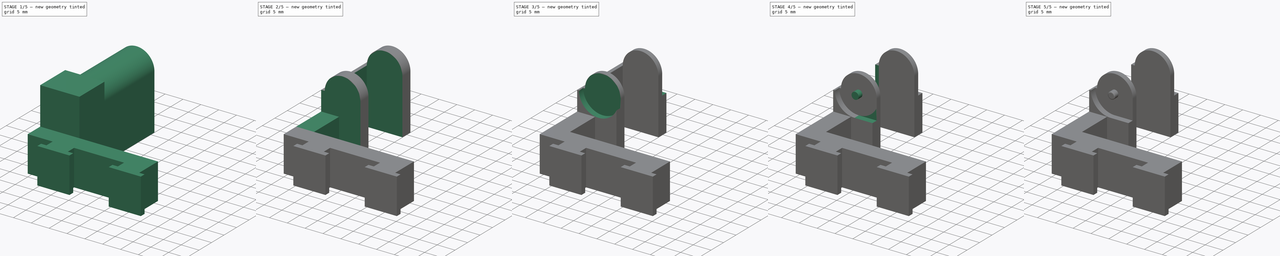
[diagram: build sequence overview — one tinted view per stage of 5, left to right]
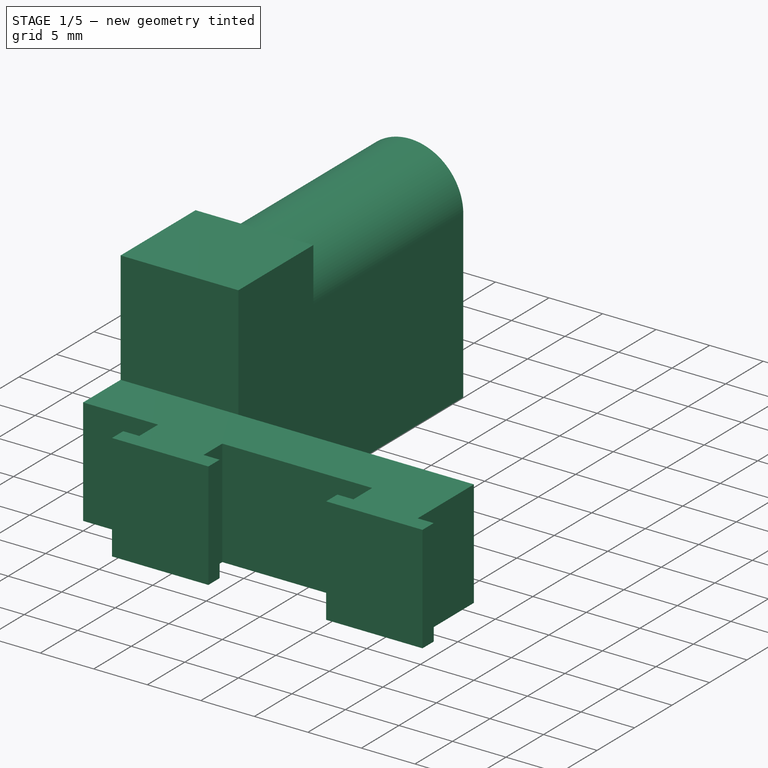
[diagram: stage 1 of 5 — iso view after this stage's code; geometry added in this stage tinted green]
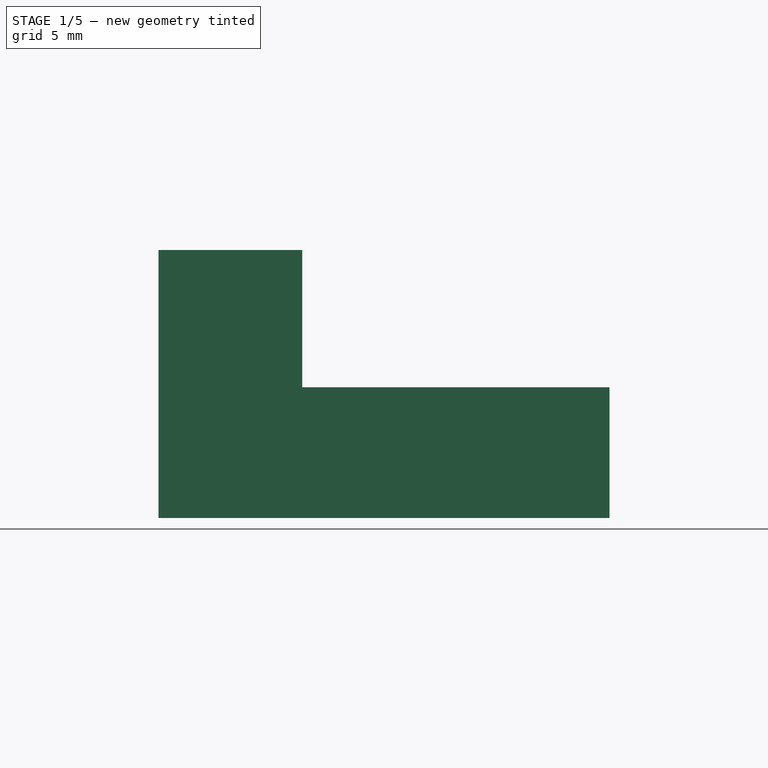
[diagram: stage 1 of 5 — front view after this stage's code; geometry added in this stage tinted green]
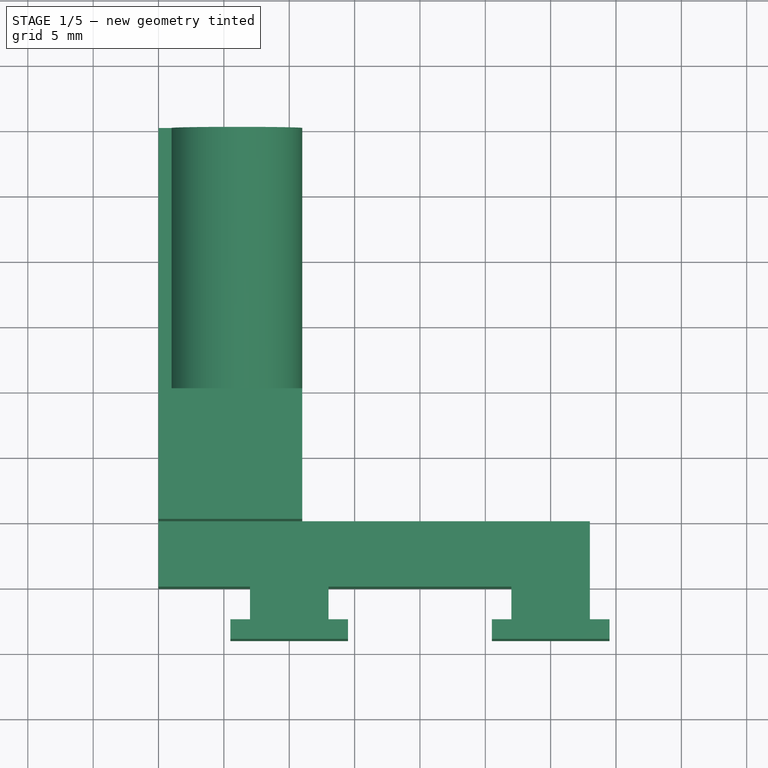
[diagram: stage 1 of 5 — top view after this stage's code; geometry added in this stage tinted green]
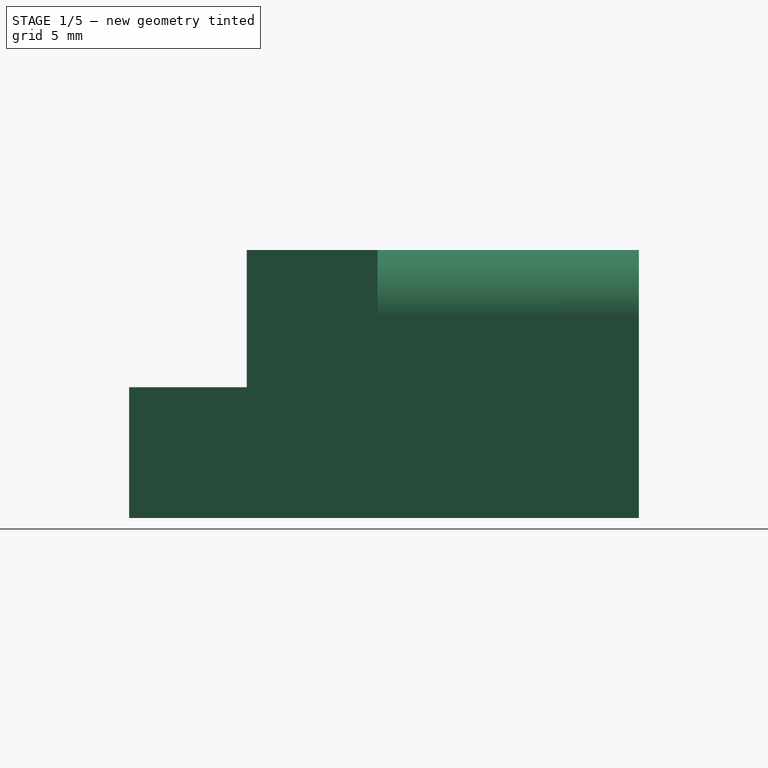
[diagram: stage 1 of 5 — right view after this stage's code; geometry added in this stage tinted green]
FCSTD DOCUMENT  (FreeCAD 0.17R13541 (Git))
Label: CableCareerTableFooter
License: All rights reserved
LicenseURL: http://en.wikipedia.org/wiki/All_rights_reserved
objects: Sketcher::SketchObject×14, PartDesign::Pocket×10, PartDesign::Pad×3, PartDesign::Fillet×2, PartDesign::Body×1
note: 43 computed .brp shape members not serialized (recipe doc carries the construction recipe); baked Part::Feature solids carry a one-line shape summary decoded from their .brp

FEATURE [Sketcher::SketchObject] Sketch
  MapMode = 5
  Support = -> [XY_Plane]
  sketch-geometry (21):
    g0: LineSegment StartX=13 StartY=0 StartZ=0 EndX=13 EndY=-2.5 EndZ=0
    g1: LineSegment StartX=13 StartY=-2.5 StartZ=0 EndX=14.5 EndY=-2.5 EndZ=0
    g2: LineSegment StartX=14.5 StartY=-2.5 StartZ=0 EndX=14.5 EndY=-4 EndZ=0
    g3: LineSegment StartX=14.5 StartY=-4 StartZ=0 EndX=5.5 EndY=-4 EndZ=0
    g4: LineSegment StartX=5.5 StartY=-4 StartZ=0 EndX=5.5 EndY=-2.5 EndZ=0
    g5: LineSegment StartX=5.5 StartY=-2.5 StartZ=0 EndX=7 EndY=-2.5 EndZ=0
    g6: LineSegment StartX=7 StartY=-2.5 StartZ=0 EndX=7 EndY=0 EndZ=0
    g7: LineSegment StartX=7 StartY=0 StartZ=0 EndX=-7 EndY=0 EndZ=0
    g8: LineSegment StartX=-7 StartY=0 StartZ=0 EndX=-7 EndY=-2.5 EndZ=0
    g9: LineSegment StartX=-7 StartY=-2.5 StartZ=0 EndX=-5.5 EndY=-2.5 EndZ=0
    g10: LineSegment StartX=-5.5 StartY=-2.5 StartZ=0 EndX=-5.5 EndY=-4 EndZ=0
    g11: LineSegment StartX=-5.5 StartY=-4 StartZ=0 EndX=-14.5 EndY=-4 EndZ=0
    g12: LineSegment StartX=-14.5 StartY=-4 StartZ=0 EndX=-14.5 EndY=-2.5 EndZ=0
    g13: LineSegment StartX=-14.5 StartY=-2.5 StartZ=0 EndX=-13 EndY=-2.5 EndZ=0
    g14: LineSegment StartX=-13 StartY=-2.5 StartZ=0 EndX=-13 EndY=0 EndZ=0
    g15: LineSegment StartX=-13 StartY=0 StartZ=0 EndX=-20 EndY=0 EndZ=0
    g16: LineSegment StartX=-20 StartY=0 StartZ=0 EndX=-20 EndY=35 EndZ=0
    g17: LineSegment StartX=-20 StartY=35 StartZ=0 EndX=-9 EndY=35 EndZ=0
    g18: LineSegment StartX=-9 StartY=35 StartZ=0 EndX=-9 EndY=5 EndZ=0
    g19: LineSegment StartX=-9 StartY=5 StartZ=0 EndX=13 EndY=5 EndZ=0
    g20: LineSegment StartX=13 StartY=5 StartZ=0 EndX=13 EndY=0 EndZ=0
  constraints (63):
    c: Coincident(g0,g1)
    c: Coincident(g1,g2)
    c: Coincident(g2,g3)
    c: Coincident(g3,g4)
    c: Coincident(g4,g5)
    c: Coincident(g5,g6)
    c: Coincident(g6,g7)
    c: Coincident(g7,g8)
    c: Coincident(g8,g9)
    c: Coincident(g9,g10)
    c: Coincident(g10,g11)
    c: Coincident(g11,g12)
    c: Coincident(g12,g13)
    c: Coincident(g13,g14)
    c: Coincident(g14,g15)
    c: Horizontal(g11)
    c: Horizontal(g13)
    c: Horizontal(g15)
    c: Horizontal(g7)
    c: Horizontal(g9)
    c: Horizontal(g5)
    c: Horizontal(g3)
    c: Horizontal(g1)
    c: Vertical(g12)
    c: Vertical(g14)
    c: Vertical(g8)
    c: Vertical(g10)
    c: Vertical(g4)
    c: Vertical(g6)
    c: Vertical(g0)
    c: Vertical(g2)
    c: DistanceX(g15,g15) = 7
    c: DistanceX(g7,g7) = 14
    c: DistanceX(g14,g7) = 6
    c: DistanceX(g6,g0) = 6
    c: PointOnObject(g15,g-1)
    c: PointOnObject(g7,g-1)
    c: PointOnObject(g0,g-1)
    c: DistanceY(g14,g14) = 2.5
    c: DistanceY(g8,g8) = 2.5
    c: DistanceY(g6,g6) = 2.5
    c: DistanceY(g0,g0) = 2.5
    c: DistanceY(g12,g12) = 1.5
    c: DistanceY(g4,g4) = 1.5
    c: DistanceX(g13,g13) = 1.5
    c: DistanceX(g9,g9) = 1.5
    c: DistanceX(g5,g5) = 1.5
    c: DistanceX(g1,g1) = 1.5
    c: DistanceX(g7,g-1) = 7
    c: Coincident(g16,g17)
    c: Coincident(g17,g18)
    c: Coincident(g18,g19)
    c: Coincident(g19,g20)
    c: Vertical(g16)
    c: Vertical(g18)
    c: Vertical(g20)
    c: Horizontal(g17)
    c: Horizontal(g19)
    c: Coincident(g16,g15)
    c: DistanceY(g16,g16) = 35
    c: DistanceY(g20,g20) = 5
    c: DistanceX(g17,g17) = 11
    c: Coincident(g0,g20)
FEATURE [PartDesign::Pad] Pad
  Length = 20.5
  Length2 = 100
  Profile = -> Sketch
  Type = 0
FEATURE [Sketcher::SketchObject] Sketch001
  ExternalGeometry = -> [Pad]
  MapMode = 5
  Placement = pos=(0,35,0) rot=(0,0.707107,0.707107;3.14159rad)
  Support = -> [Pad]
  sketch-geometry (5):
    g0: ArcOfCircle CenterX=14 CenterY=15.5 CenterZ=0 NormalX=0 NormalY=0 NormalZ=1 AngleXU=0 Radius=5 StartAngle=4.22082e-07 EndAngle=3.14159
    g1: LineSegment StartX=9 StartY=21.5 StartZ=0 EndX=20 EndY=21.5 EndZ=0
    g2: LineSegment StartX=20 StartY=21.5 StartZ=0 EndX=20 EndY=15.5 EndZ=0
    g3: LineSegment StartX=9 StartY=21.5 StartZ=0 EndX=9 EndY=15.5 EndZ=0
    g4: LineSegment StartX=19 StartY=15.5 StartZ=0 EndX=20 EndY=15.5 EndZ=0
  constraints (16):
    c: Radius(g0) = 5
    c: Angle(g0) = 3.14159
    c: Coincident(g1,g2)
    c: Vertical(g2)
    c: Horizontal(g1)
    c: Tangent(g0,g-5)
    c: DistanceY(g-5,g1) = 1
    c: Tangent(g0,g-3)
    c: PointOnObject(g0,g-3)
    c: Coincident(g3,g0)
    c: Coincident(g3,g1)
    c: Vertical(g3)
    c: Coincident(g4,g2)
    c: Coincident(g0,g4)
    c: Horizontal(g4)
    c: PointOnObject(g2,g-4)
FEATURE [Sketcher::SketchObject] Sketch002
  ExternalGeometry = -> [Pad]
  MapMode = 5
  Placement = pos=(0,0,20.5) rot=(0,0,1;0rad)
  Support = -> [Pad]
FEATURE [Sketcher::SketchObject] Sketch003
  ExternalGeometry = -> [Pad]
  MapMode = 5
  Placement = pos=(0,0,20.5) rot=(0,0,1;0rad)
  Support = -> [Pad]
  sketch-geometry (4):
    g0: LineSegment StartX=-20 StartY=-4 StartZ=0 EndX=14.5 EndY=-4 EndZ=0
    g1: LineSegment StartX=14.5 StartY=-4 StartZ=0 EndX=14.5 EndY=5 EndZ=0
    g2: LineSegment StartX=14.5 StartY=5 StartZ=0 EndX=-20 EndY=5 EndZ=0
    g3: LineSegment StartX=-20 StartY=5 StartZ=0 EndX=-20 EndY=-4 EndZ=0
  constraints (11):
    c: Coincident(g0,g1)
    c: Coincident(g1,g2)
    c: Coincident(g2,g3)
    c: Coincident(g3,g0)
    c: Horizontal(g0)
    c: Horizontal(g2)
    c: Vertical(g1)
    c: Vertical(g3)
    c: PointOnObject(g-3,g2)
    c: Coincident(g0,g-6)
    c: PointOnObject(g-5,g3)
FEATURE [PartDesign::Pocket] Pocket
  BaseFeature = -> Pad
  Length = 10.5
  Length2 = 100
  Profile = -> Sketch003
  Type = 0
FEATURE [PartDesign::Pocket] Pocket001
  BaseFeature = -> Pocket
  Length = 20
  Length2 = 100
  Profile = -> Sketch001
  Type = 0
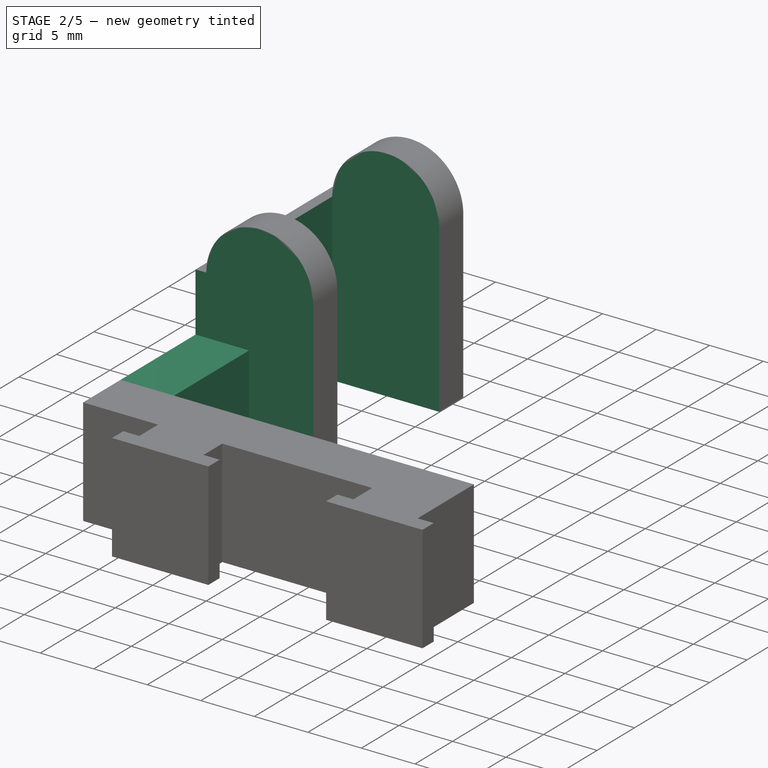
[diagram: stage 2 of 5 — iso view after this stage's code; geometry added in this stage tinted green]
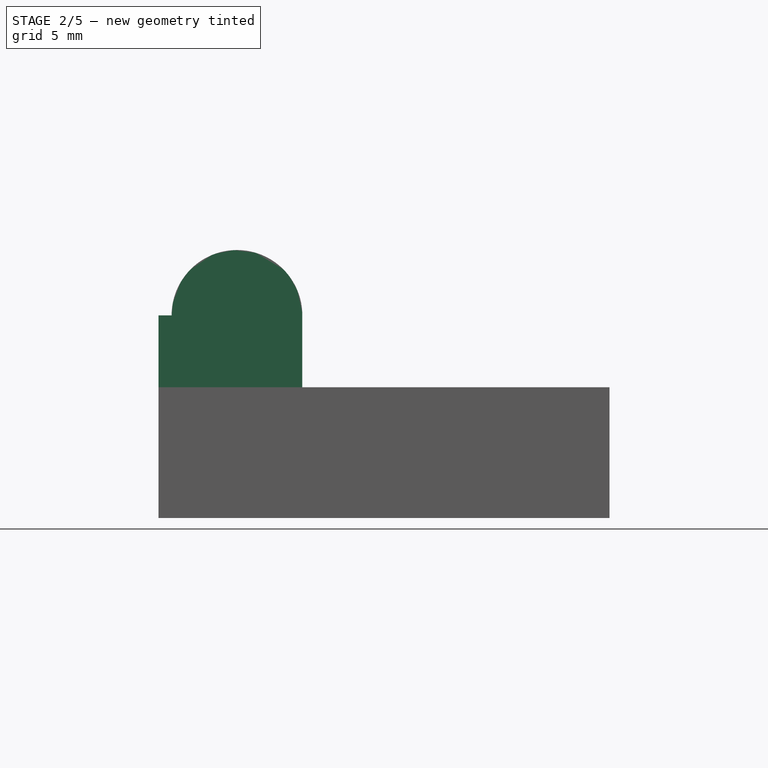
[diagram: stage 2 of 5 — front view after this stage's code; geometry added in this stage tinted green]
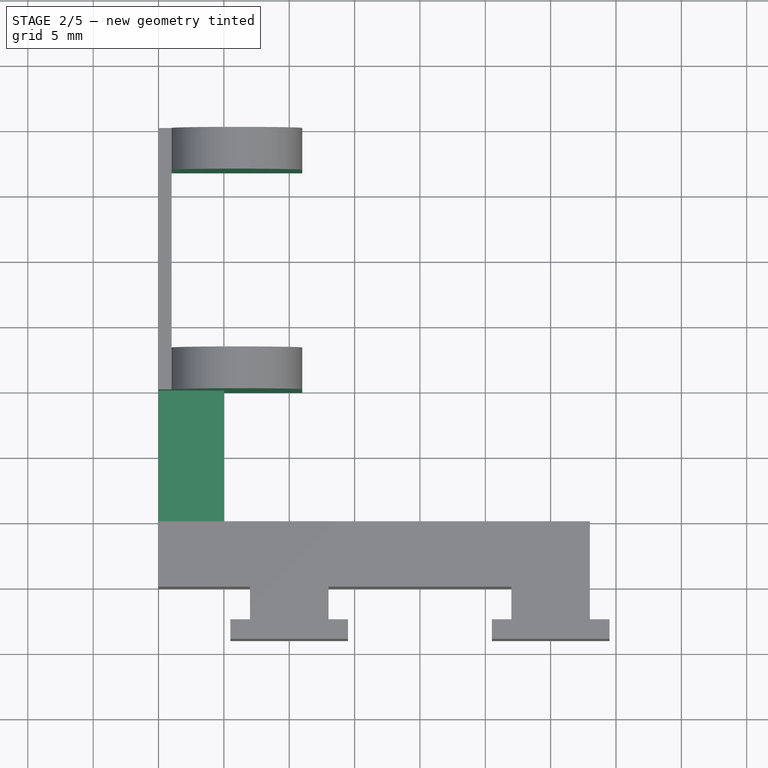
[diagram: stage 2 of 5 — top view after this stage's code; geometry added in this stage tinted green]
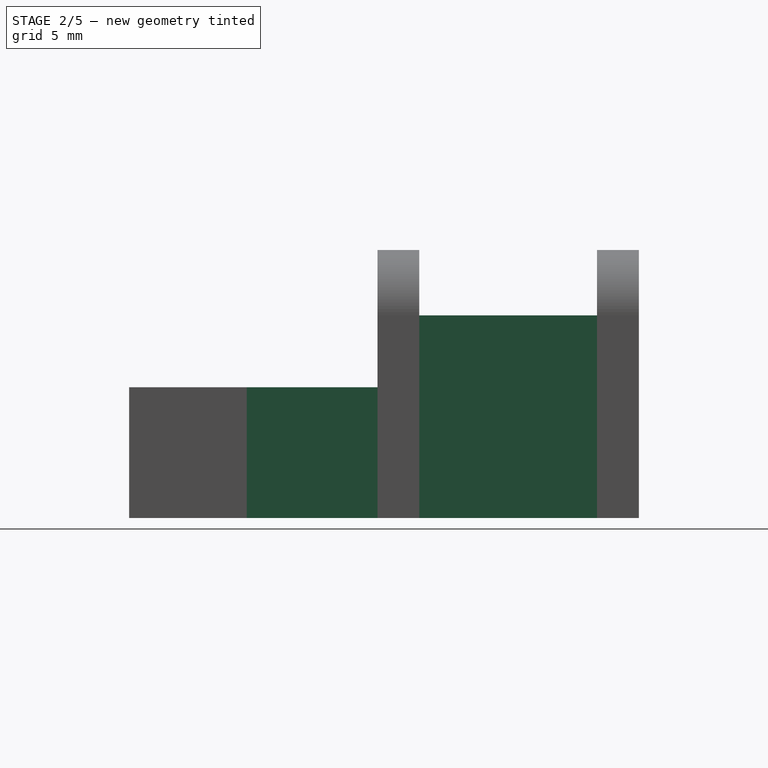
[diagram: stage 2 of 5 — right view after this stage's code; geometry added in this stage tinted green]
FEATURE [Sketcher::SketchObject] Sketch018
  ExternalGeometry = -> [Pocket001]
  MapMode = 5
  Placement = pos=(-9,0,0) rot=(0.57735,0.57735,0.57735;2.0944rad)
  Support = -> [Pocket001]
  sketch-geometry (4):
    g0: LineSegment StartX=18.2 StartY=20.5 StartZ=0 EndX=31.8 EndY=20.5 EndZ=0
    g1: LineSegment StartX=31.8 StartY=20.5 StartZ=0 EndX=31.8 EndY=0 EndZ=0
    g2: LineSegment StartX=31.8 StartY=0 StartZ=0 EndX=18.2 EndY=0 EndZ=0
    g3: LineSegment StartX=18.2 StartY=0 StartZ=0 EndX=18.2 EndY=20.5 EndZ=0
  constraints (12):
    c: Coincident(g0,g1)
    c: Coincident(g1,g2)
    c: Coincident(g2,g3)
    c: Coincident(g3,g0)
    c: Horizontal(g0)
    c: Horizontal(g2)
    c: Vertical(g1)
    c: Vertical(g3)
    c: PointOnObject(g1,g-4)
    c: DistanceX(g0,g-3) = 3.2
    c: DistanceX(g-3,g0) = 3.2
    c: DistanceY(g3,g3) = 20.5
FEATURE [PartDesign::Pocket] Pocket002
  BaseFeature = -> Pocket001
  Length = 10
  Length2 = 100
  Profile = -> Sketch018
  Type = 0
FEATURE [Sketcher::SketchObject] Sketch019
  ExternalGeometry = -> [Pocket002]
  MapMode = 5
  Placement = pos=(0,0,20.5) rot=(0,0,1;0rad)
  Support = -> [Pocket002]
  sketch-geometry (4):
    g0: LineSegment StartX=-20 StartY=15 StartZ=0 EndX=-9 EndY=15 EndZ=0
    g1: LineSegment StartX=-9 StartY=15 StartZ=0 EndX=-9 EndY=5 EndZ=0
    g2: LineSegment StartX=-9 StartY=5 StartZ=0 EndX=-20 EndY=5 EndZ=0
    g3: LineSegment StartX=-20 StartY=5 StartZ=0 EndX=-20 EndY=15 EndZ=0
  constraints (10):
    c: Coincident(g0,g1)
    c: Coincident(g1,g2)
    c: Coincident(g2,g3)
    c: Coincident(g3,g0)
    c: Horizontal(g0)
    c: Horizontal(g2)
    c: Vertical(g1)
    c: Vertical(g3)
    c: Coincident(g0,g-3)
    c: Coincident(g1,g-4)
FEATURE [PartDesign::Pocket] Pocket003
  BaseFeature = -> Pocket002
  Length = 10.5
  Length2 = 100
  Profile = -> Sketch019
  Type = 0
FEATURE [Sketcher::SketchObject] Sketch020
  ExternalGeometry = -> [Pocket003]
  MapMode = 5
  Placement = pos=(0,0,10) rot=(0,0,1;0rad)
  Support = -> [Pocket003]
  sketch-geometry (4):
    g0: LineSegment StartX=-15 StartY=15 StartZ=0 EndX=-9 EndY=15 EndZ=0
    g1: LineSegment StartX=-9 StartY=15 StartZ=0 EndX=-9 EndY=5 EndZ=0
    g2: LineSegment StartX=-9 StartY=5 StartZ=0 EndX=-15 EndY=5 EndZ=0
    g3: LineSegment StartX=-15 StartY=5 StartZ=0 EndX=-15 EndY=15 EndZ=0
  constraints (11):
    c: Coincident(g0,g1)
    c: Coincident(g1,g2)
    c: Coincident(g2,g3)
    c: Coincident(g3,g0)
    c: Horizontal(g0)
    c: Horizontal(g2)
    c: Vertical(g1)
    c: Vertical(g3)
    c: Coincident(g1,g-4)
    c: Coincident(g0,g-4)
    c: DistanceX(g-3,g2) = 5
FEATURE [PartDesign::Pocket] Pocket004
  BaseFeature = -> Pocket003
  Length = 10
  Length2 = 100
  Profile = -> Sketch020
  Type = 0
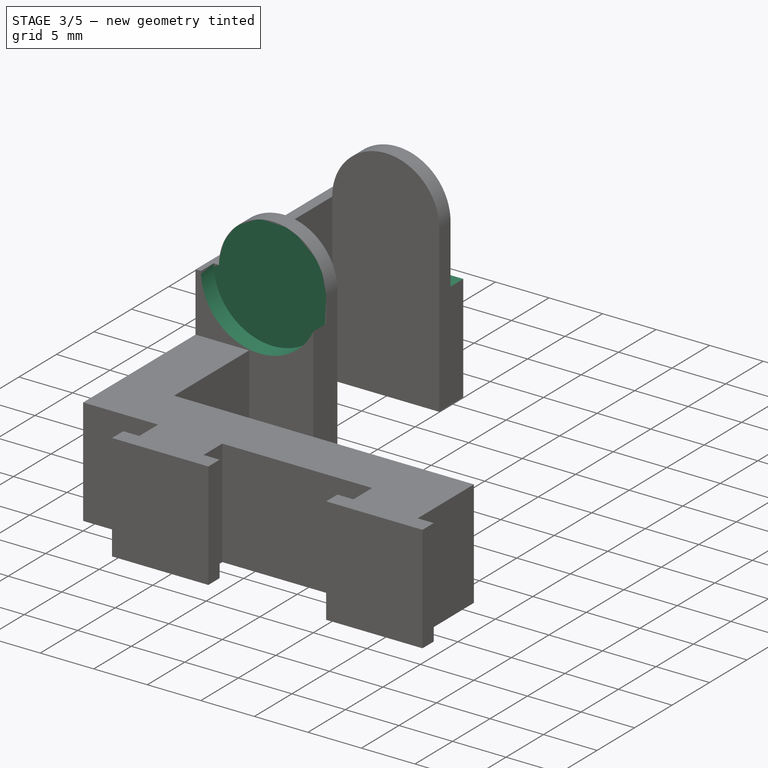
[diagram: stage 3 of 5 — iso view after this stage's code; geometry added in this stage tinted green]
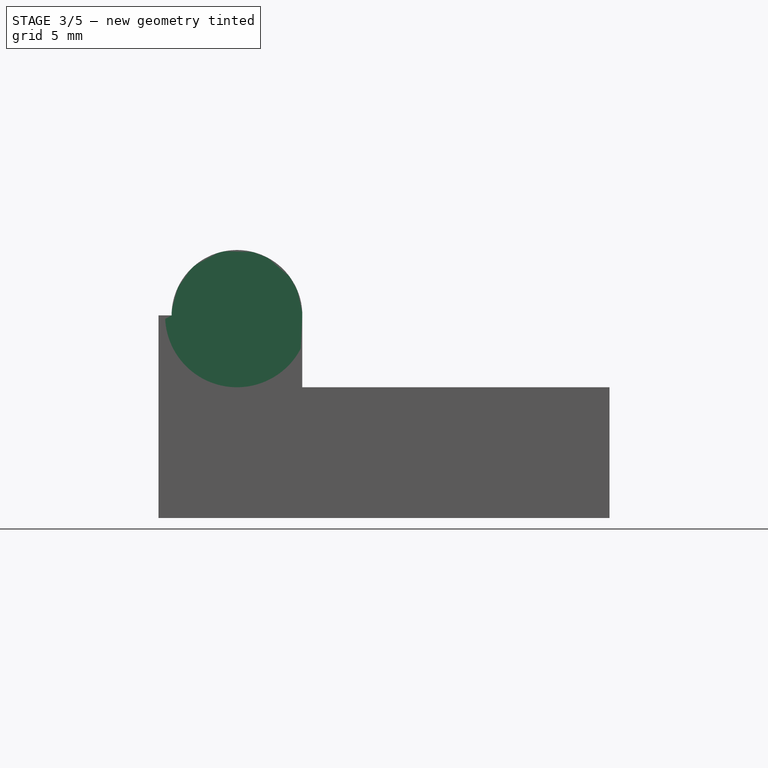
[diagram: stage 3 of 5 — front view after this stage's code; geometry added in this stage tinted green]
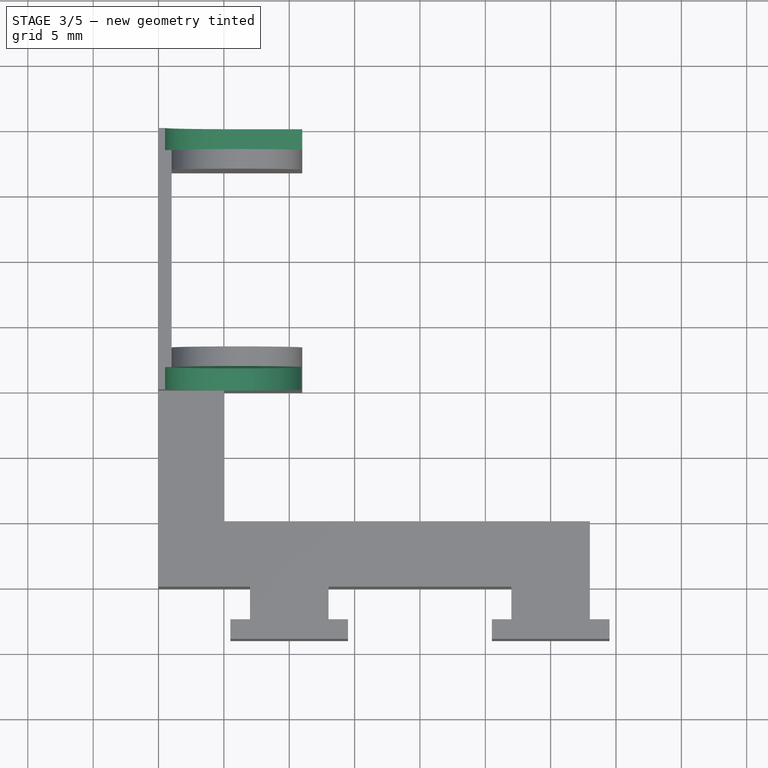
[diagram: stage 3 of 5 — top view after this stage's code; geometry added in this stage tinted green]
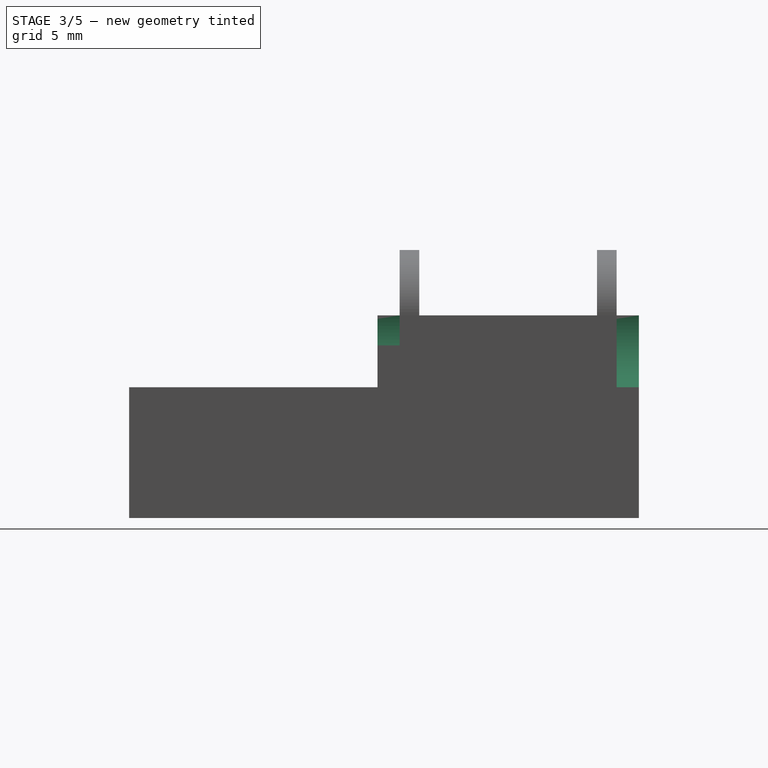
[diagram: stage 3 of 5 — right view after this stage's code; geometry added in this stage tinted green]
FEATURE [Sketcher::SketchObject] Sketch021
  ExternalGeometry = -> [Pocket004]
  MapMode = 5
  Placement = pos=(0,35,0) rot=(0,0.707107,0.707107;3.14159rad)
  Support = -> [Pocket004]
  sketch-geometry (1):
    g0: Circle CenterX=14 CenterY=15.5 CenterZ=0 NormalX=0 NormalY=0 NormalZ=1 AngleXU=0 Radius=5.5
  constraints (2):
    c: Coincident(g-3,g0)
    c: Radius(g0) = 5.5
FEATURE [PartDesign::Pocket] Pocket005
  BaseFeature = -> Pocket004
  Length = 1.7
  Length2 = 100
  Profile = -> Sketch021
  Type = 0
FEATURE [Sketcher::SketchObject] Sketch022
  ExternalGeometry = -> [Pocket005]
  MapMode = 5
  Placement = pos=(0,35,0) rot=(0,0.707107,0.707107;3.14159rad)
  Support = -> [Pocket005]
  sketch-geometry (4):
    g0: LineSegment StartX=9 StartY=15.5 StartZ=0 EndX=14 EndY=15.5 EndZ=0
    g1: LineSegment StartX=14 StartY=15.5 StartZ=0 EndX=14 EndY=10 EndZ=0
    g2: LineSegment StartX=14 StartY=10 StartZ=0 EndX=9 EndY=10 EndZ=0
    g3: LineSegment StartX=9 StartY=10 StartZ=0 EndX=9 EndY=15.5 EndZ=0
  constraints (11):
    c: Coincident(g0,g1)
    c: Coincident(g1,g2)
    c: Coincident(g2,g3)
    c: Coincident(g3,g0)
    c: Horizontal(g0)
    c: Horizontal(g2)
    c: Vertical(g1)
    c: Vertical(g3)
    c: Coincident(g-3,g0)
    c: PointOnObject(g1,g-3)
    c: PointOnObject(g-3,g3)
FEATURE [PartDesign::Pocket] Pocket006
  BaseFeature = -> Pocket005
  Length = 1.7
  Length2 = 100
  Profile = -> Sketch022
  Type = 0
FEATURE [Sketcher::SketchObject] Sketch023
  ExternalGeometry = -> [Pocket006]
  MapMode = 5
  Placement = pos=(0,15,0) rot=(1,0,0;1.5708rad)
  Support = -> [Pocket006]
  sketch-geometry (1):
    g0: Circle CenterX=-14 CenterY=15.5 CenterZ=0 NormalX=0 NormalY=0 NormalZ=1 AngleXU=0 Radius=5.5
  constraints (2):
    c: Coincident(g-3,g0)
    c: Radius(g0) = 5.5
FEATURE [PartDesign::Pocket] Pocket007
  BaseFeature = -> Pocket006
  Length = 1.7
  Length2 = 100
  Profile = -> Sketch023
  Type = 0
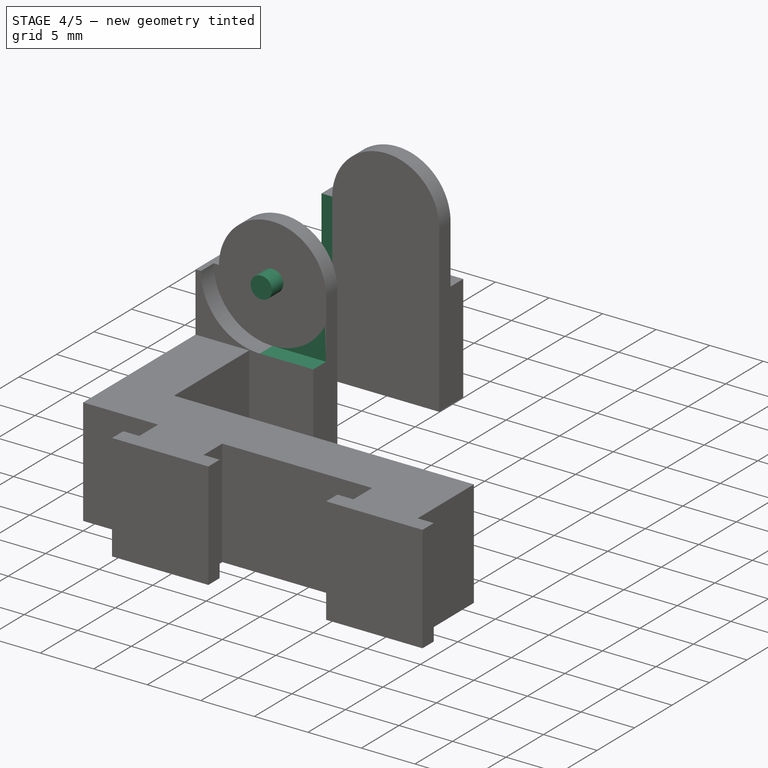
[diagram: stage 4 of 5 — iso view after this stage's code; geometry added in this stage tinted green]
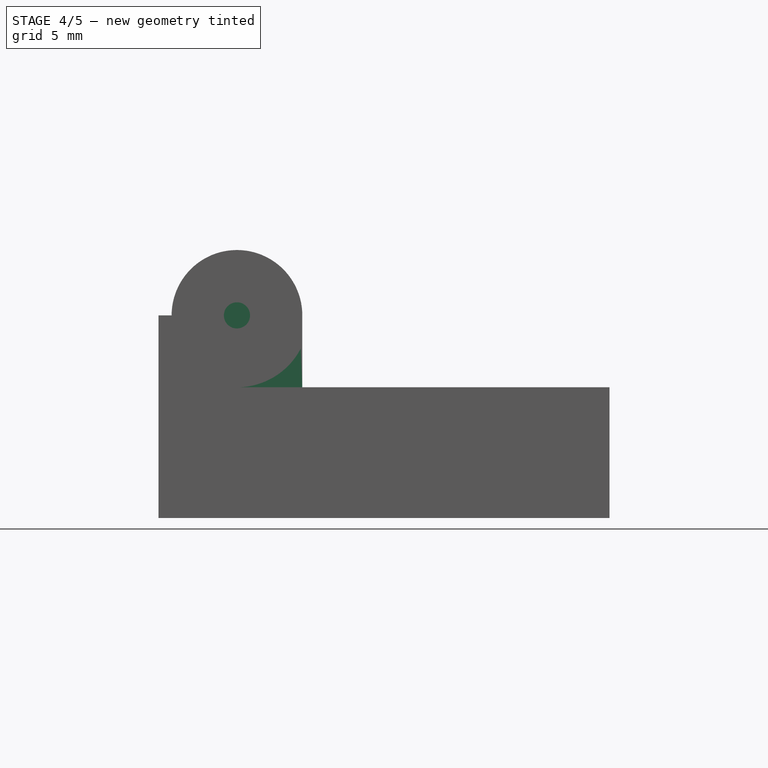
[diagram: stage 4 of 5 — front view after this stage's code; geometry added in this stage tinted green]
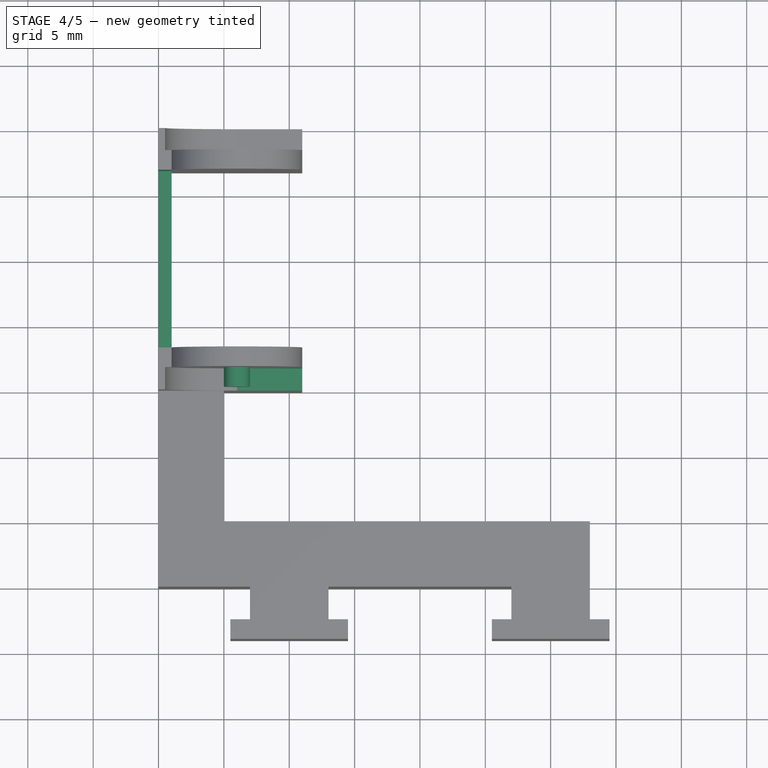
[diagram: stage 4 of 5 — top view after this stage's code; geometry added in this stage tinted green]
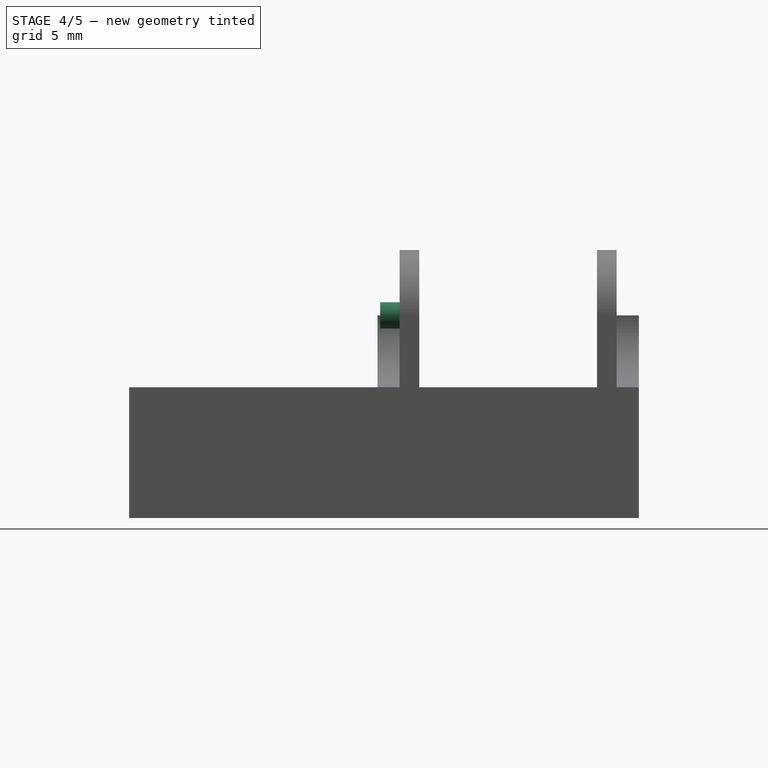
[diagram: stage 4 of 5 — right view after this stage's code; geometry added in this stage tinted green]
FEATURE [Sketcher::SketchObject] Sketch024
  ExternalGeometry = -> [Pocket007]
  MapMode = 5
  Placement = pos=(0,15,0) rot=(1,0,0;1.5708rad)
  Support = -> [Pocket007]
  sketch-geometry (4):
    g0: LineSegment StartX=-14 StartY=15.5 StartZ=0 EndX=-9 EndY=15.5 EndZ=0
    g1: LineSegment StartX=-9 StartY=15.5 StartZ=0 EndX=-9 EndY=10 EndZ=0
    g2: LineSegment StartX=-9 StartY=10 StartZ=0 EndX=-14 EndY=10 EndZ=0
    g3: LineSegment StartX=-14 StartY=10 StartZ=0 EndX=-14 EndY=15.5 EndZ=0
  constraints (11):
    c: Coincident(g0,g1)
    c: Coincident(g1,g2)
    c: Coincident(g2,g3)
    c: Coincident(g3,g0)
    c: Horizontal(g0)
    c: Horizontal(g2)
    c: Vertical(g1)
    c: Vertical(g3)
    c: Coincident(g0,g-4)
    c: PointOnObject(g2,g-4)
    c: PointOnObject(g-4,g1)
FEATURE [PartDesign::Pocket] Pocket008
  BaseFeature = -> Pocket007
  Length = 1.7
  Length2 = 100
  Profile = -> Sketch024
  Type = 0
FEATURE [Sketcher::SketchObject] Sketch025
  ExternalGeometry = -> [Pocket008]
  MapMode = 5
  Placement = pos=(-19,0,0) rot=(0.57735,0.57735,0.57735;2.0944rad)
  Support = -> [Pocket008]
  sketch-geometry (4):
    g0: LineSegment StartX=18.2 StartY=15.5 StartZ=0 EndX=31.8 EndY=15.5 EndZ=0
    g1: LineSegment StartX=31.8 StartY=15.5 StartZ=0 EndX=31.8 EndY=10 EndZ=0
    g2: LineSegment StartX=31.8 StartY=10 StartZ=0 EndX=18.2 EndY=10 EndZ=0
    g3: LineSegment StartX=18.2 StartY=10 StartZ=0 EndX=18.2 EndY=15.5 EndZ=0
  constraints (11):
    c: Coincident(g0,g1)
    c: Coincident(g1,g2)
    c: Coincident(g2,g3)
    c: Coincident(g3,g0)
    c: Horizontal(g0)
    c: Horizontal(g2)
    c: Vertical(g1)
    c: Vertical(g3)
    c: Coincident(g0,g-3)
    c: Coincident(g-3,g0)
    c: DistanceY(g-4,g2) = 0
FEATURE [PartDesign::Pocket] Pocket009
  BaseFeature = -> Pocket008
  Length = 1
  Length2 = 100
  Profile = -> Sketch025
  Type = 0
FEATURE [Sketcher::SketchObject] Sketch026
  ExternalGeometry = -> [Pocket009]
  MapMode = 5
  Placement = pos=(0,16.7,0) rot=(1,0,0;1.5708rad)
  Support = -> [Pocket009]
  sketch-geometry (1):
    g0: Circle CenterX=-14 CenterY=15.5 CenterZ=0 NormalX=0 NormalY=0 NormalZ=1 AngleXU=0 Radius=1
  constraints (2):
    c: Coincident(g-3,g0)
    c: Radius(g0) = 1
FEATURE [PartDesign::Pad] Pad001
  BaseFeature = -> Pocket009
  Length = 1.5
  Length2 = 100
  Profile = -> Sketch026
  Type = 0
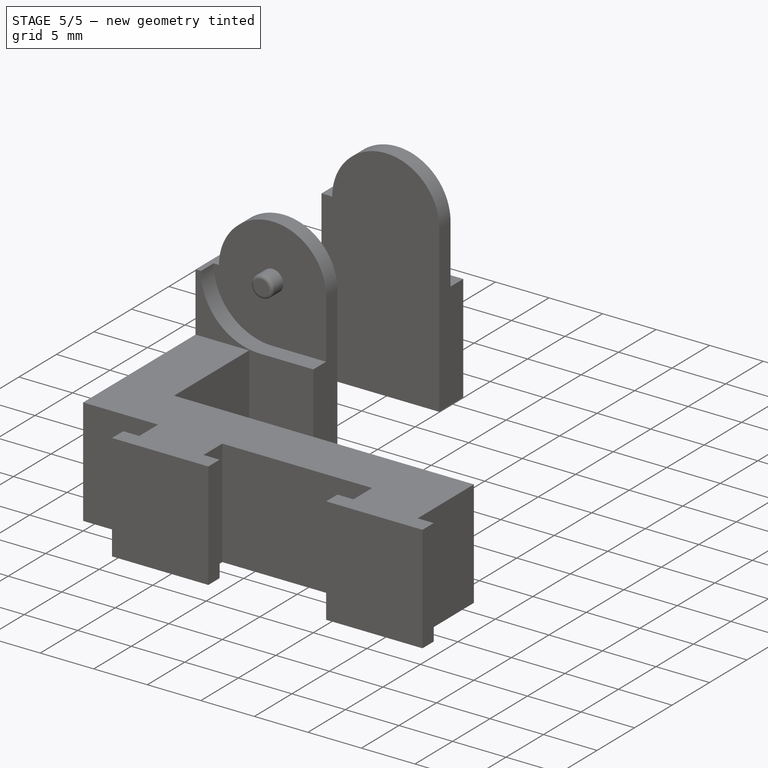
[diagram: stage 5 of 5 — iso view after this stage's code; geometry added in this stage tinted green]
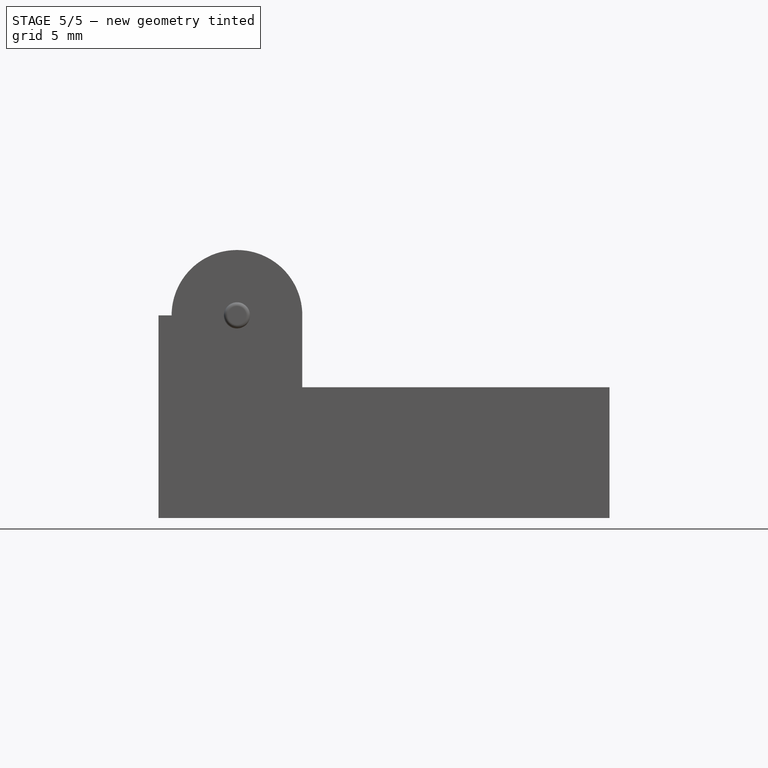
[diagram: stage 5 of 5 — front view after this stage's code; geometry added in this stage tinted green]
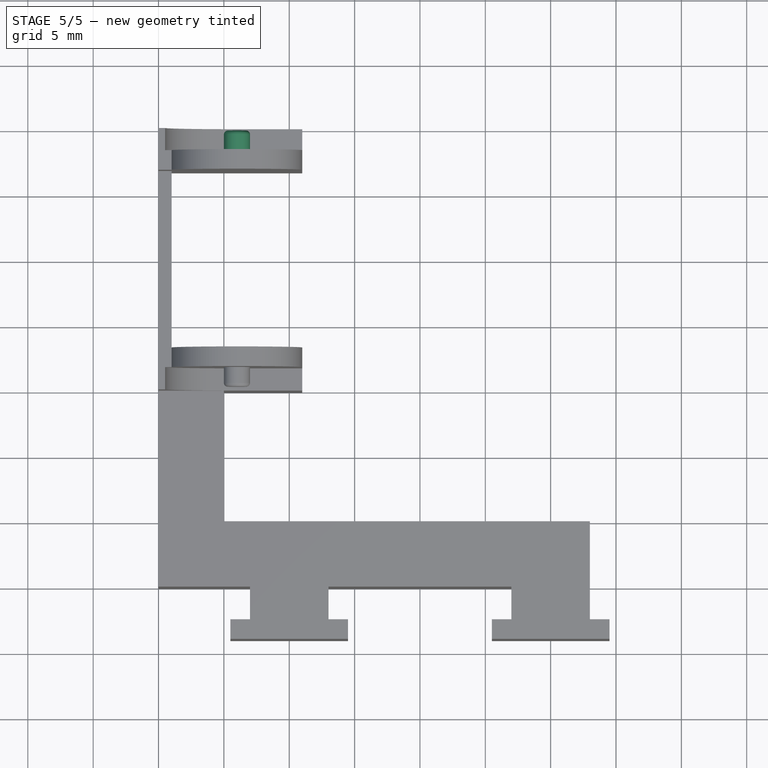
[diagram: stage 5 of 5 — top view after this stage's code; geometry added in this stage tinted green]
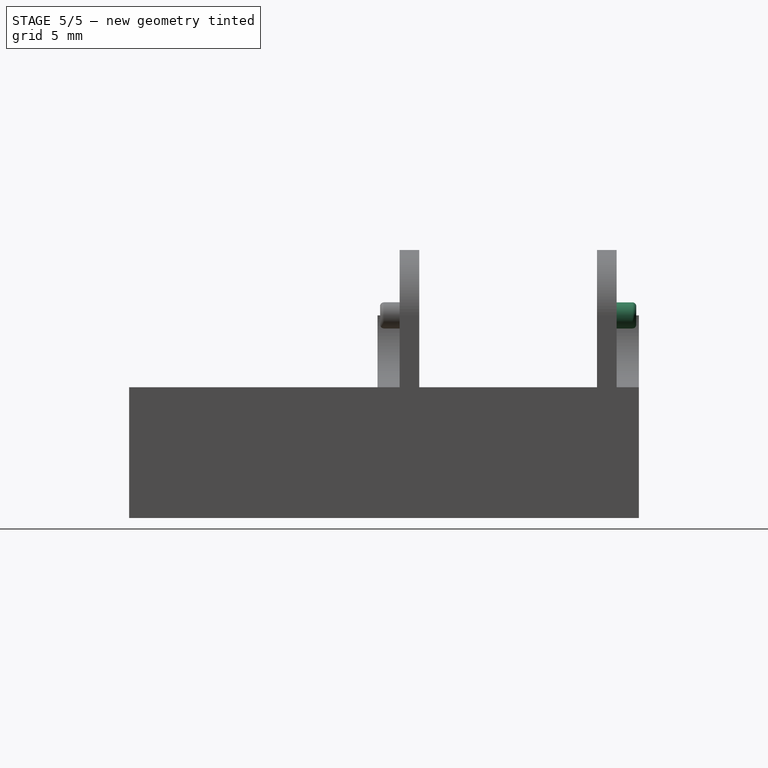
[diagram: stage 5 of 5 — right view after this stage's code; geometry added in this stage tinted green]
FEATURE [PartDesign::Fillet] Fillet
  Base = -> Pad001 [Edge145]
  BaseFeature = -> Pad001
  Radius = 0.3
FEATURE [Sketcher::SketchObject] Sketch027
  ExternalGeometry = -> [Fillet]
  MapMode = 5
  Placement = pos=(0,33.3,0) rot=(0,0.707107,0.707107;3.14159rad)
  Support = -> [Fillet]
  sketch-geometry (1):
    g0: Circle CenterX=14 CenterY=15.5 CenterZ=0 NormalX=0 NormalY=0 NormalZ=1 AngleXU=0 Radius=1
  constraints (2):
    c: Coincident(g-3,g0)
    c: Radius(g0) = 1
FEATURE [PartDesign::Pad] Pad002
  BaseFeature = -> Fillet
  Length = 1.5
  Length2 = 100
  Profile = -> Sketch027
  Type = 0
FEATURE [PartDesign::Fillet] Fillet001
  Base = -> Pad002 [Edge152]
  BaseFeature = -> Pad002
  Radius = 0.3
FEATURE [PartDesign::Body] Body
  Group = -> [Sketch,Pad,Sketch002,Sketch003,Pocket,Sketch001,Pocket001,Sketch018,Pocket002,Sketch019,Pocket003,Sketch020,Pocket004,Sketch021,Pocket005,Sketch022,Pocket006,Sketch023,Pocket007,Sketch024,Pocket008,Sketch025,Pocket009,Sketch026,Pad001,Fillet,Sketch027,Pad002,Fillet001]
  Origin = -> Origin
  Tip = -> Fillet001
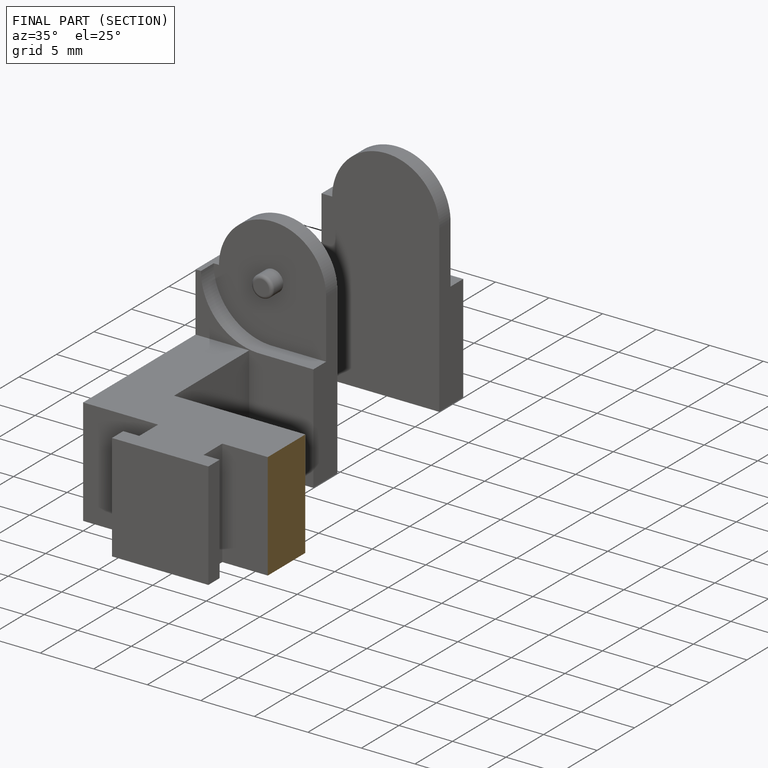
[diagram: finished part — half-section view (interior)]
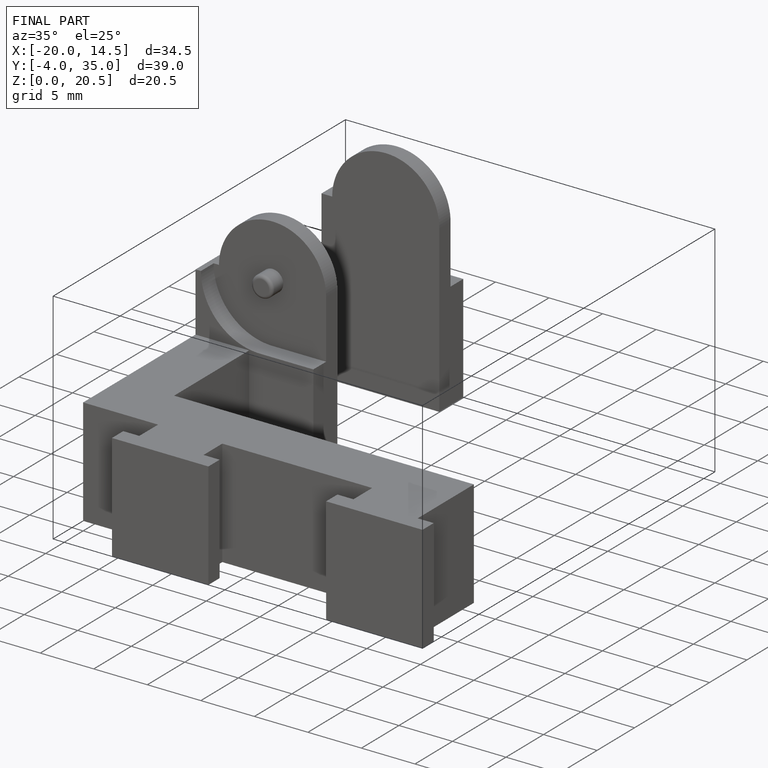
[diagram: finished part — iso view with bounding-box wireframe]
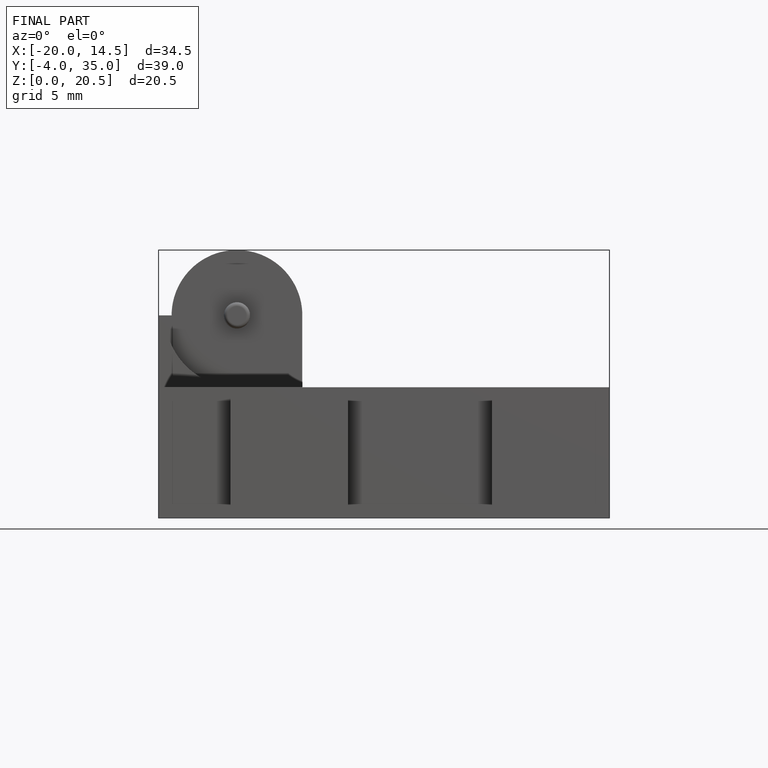
[diagram: finished part — front view with bounding-box wireframe]
